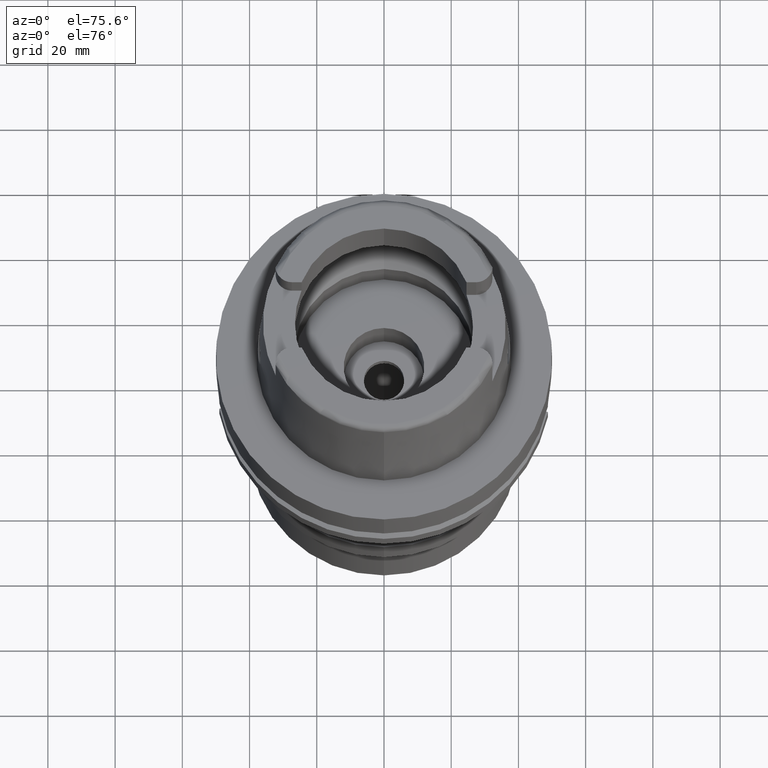
[diagram: clean part render]
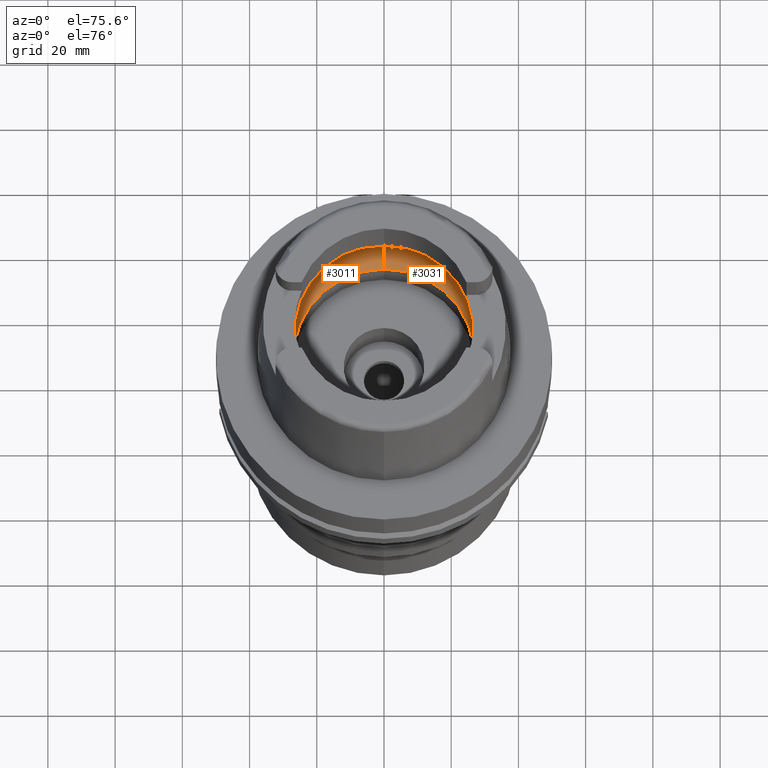
[diagram: same view with one multi-face feature highlighted, each face labeled with its STEP entity id]
A machine part, auxiliary view. The highlighted faces form ONE feature: a constant-radius fillet chain: 2 tangent blend faces with common blend radius 12 mm. The faces share edges in the B-rep.
Their STEP definitions:
[1] entity #3011 (Torus):
#498=CARTESIAN_POINT('',(-3.140918884336E1,-2.390158196044E0,9.496624327026E0));
#543=CARTESIAN_POINT('',(-3.148971910754E1,0.E0,9.E0));
#544=CARTESIAN_POINT('',(-3.148971910754E1,-2.735552426835E-1,9.E0));
#545=CARTESIAN_POINT('',(-3.148418901092E1,-8.204027768437E-1,
9.037461925815E0));
#546=CARTESIAN_POINT('',(-3.145848757005E1,-1.624950920429E0,9.204834711235E0));
#547=CARTESIAN_POINT('',(-3.142821181016E1,-2.140176434291E0,9.388055333699E0));
#548=CARTESIAN_POINT('',(-3.140918884336E1,-2.390158196044E0,9.496624327026E0));
#571=CARTESIAN_POINT('',(-3.140918884336E1,2.390158196044E0,9.496624327026E0));
#572=CARTESIAN_POINT('',(-3.142821158607E1,2.140179379143E0,9.388056612671E0));
#573=CARTESIAN_POINT('',(-3.145848727389E1,1.624958120972E0,9.204836685399E0));
#574=CARTESIAN_POINT('',(-3.148418900229E1,8.204048274011E-1,9.037461976477E0));
#575=CARTESIAN_POINT('',(-3.148971910754E1,2.735560829655E-1,9.E0));
#576=CARTESIAN_POINT('',(-3.148971910754E1,0.E0,9.E0));
#608=CARTESIAN_POINT('',(0.E0,0.E0,9.496624327026E0));
#609=DIRECTION('',(0.E0,0.E0,-1.E0));
#610=DIRECTION('',(-9.971171061384E-1,7.587803796965E-2,0.E0));
#611=AXIS2_PLACEMENT_3D('',#608,#609,#610);
#616=CARTESIAN_POINT('',(0.E0,0.E0,4.993178413035E-2));
#617=DIRECTION('',(0.E0,0.E0,1.E0));
#618=DIRECTION('',(0.E0,1.E0,0.E0));
#619=AXIS2_PLACEMENT_3D('',#616,#617,#618);
#624=CARTESIAN_POINT('',(0.E0,-1.95E1,9.496624327026E0));
#625=DIRECTION('',(-1.E0,0.E0,0.E0));
#626=DIRECTION('',(0.E0,-6.166666666667E-1,-7.872243785746E-1));
#627=AXIS2_PLACEMENT_3D('',#624,#625,#626);
#632=CARTESIAN_POINT('',(0.E0,0.E0,9.496624327026E0));
#633=DIRECTION('',(0.E0,0.E0,-1.E0));
#634=DIRECTION('',(0.E0,-1.E0,0.E0));
#635=AXIS2_PLACEMENT_3D('',#632,#633,#634);
#656=CARTESIAN_POINT('',(0.E0,1.95E1,9.496624327026E0));
#657=DIRECTION('',(1.E0,0.E0,0.E0));
#658=DIRECTION('',(0.E0,6.166666666667E-1,-7.872243785746E-1));
#659=AXIS2_PLACEMENT_3D('',#656,#657,#658);
#2360=VERTEX_POINT('',#498);
#2362=CARTESIAN_POINT('',(0.E0,-3.15E1,9.496624327026E0));
#2363=VERTEX_POINT('',#2362);
#2364=CARTESIAN_POINT('',(0.E0,3.15E1,9.496624327026E0));
#2365=VERTEX_POINT('',#2364);
#2366=CARTESIAN_POINT('',(-3.140918884336E1,2.390158196044E0,9.496624327026E0));
#2367=VERTEX_POINT('',#2366);
#2368=CARTESIAN_POINT('',(-3.148971910754E1,0.E0,9.E0));
#2369=VERTEX_POINT('',#2368);
#2374=CARTESIAN_POINT('',(0.E0,2.69E1,4.993178413035E-2));
#2375=VERTEX_POINT('',#2374);
#2376=CARTESIAN_POINT('',(0.E0,-2.69E1,4.993178413035E-2));
#2377=VERTEX_POINT('',#2376);
#2994=CARTESIAN_POINT('',(0.E0,0.E0,9.496624327026E0));
#2995=DIRECTION('',(0.E0,0.E0,1.E0));
#2996=DIRECTION('',(0.E0,1.E0,0.E0));
#2997=AXIS2_PLACEMENT_3D('',#2994,#2995,#2996);
#2998=TOROIDAL_SURFACE('',#2997,1.95E1,1.2E1);
#2999=ORIENTED_EDGE('',*,*,#2975,.F.);
#3000=ORIENTED_EDGE('',*,*,#2986,.F.);
#3001=ORIENTED_EDGE('',*,*,#2957,.T.);
#3003=ORIENTED_EDGE('',*,*,#3002,.F.);
#3005=ORIENTED_EDGE('',*,*,#3004,.T.);
#3007=ORIENTED_EDGE('',*,*,#3006,.T.);
#3008=ORIENTED_EDGE('',*,*,#2950,.T.);
#3009=EDGE_LOOP('',(#2999,#3000,#3001,#3003,#3005,#3007,#3008));
#3010=FACE_OUTER_BOUND('',#3009,.F.);
#549=B_SPLINE_CURVE_WITH_KNOTS('',3,(#543,#544,#545,#546,#547,#548),
.UNSPECIFIED.,.F.,.F.,(4,1,1,4),(0.E0,3.333333333333E-1,6.666666666667E-1,1.E0),
.UNSPECIFIED.);
#577=B_SPLINE_CURVE_WITH_KNOTS('',3,(#571,#572,#573,#574,#575,#576),
.UNSPECIFIED.,.F.,.F.,(4,1,1,4),(0.E0,3.333333333333E-1,6.666666666667E-1,1.E0),
.UNSPECIFIED.);
#612=CIRCLE('',#611,3.15E1);
#620=CIRCLE('',#619,2.69E1);
#628=CIRCLE('',#627,1.2E1);
#636=CIRCLE('',#635,3.15E1);
#660=CIRCLE('',#659,1.2E1);
#2950=EDGE_CURVE('',#2363,#2360,#636,.T.);
#2957=EDGE_CURVE('',#2367,#2365,#612,.T.);
#2975=EDGE_CURVE('',#2369,#2360,#549,.T.);
#2986=EDGE_CURVE('',#2367,#2369,#577,.T.);
#3002=EDGE_CURVE('',#2375,#2365,#660,.T.);
#3004=EDGE_CURVE('',#2375,#2377,#620,.T.);
#3006=EDGE_CURVE('',#2377,#2363,#628,.T.);
#3011=ADVANCED_FACE('',(#3010),#2998,.F.);
[2] entity #3031 (Torus):
#624=CARTESIAN_POINT('',(0.E0,-1.95E1,9.496624327026E0));
#625=DIRECTION('',(-1.E0,0.E0,0.E0));
#626=DIRECTION('',(0.E0,-6.166666666667E-1,-7.872243785746E-1));
#627=AXIS2_PLACEMENT_3D('',#624,#625,#626);
#640=CARTESIAN_POINT('',(0.E0,0.E0,9.496624327026E0));
#641=DIRECTION('',(0.E0,0.E0,-1.E0));
#642=DIRECTION('',(9.971171061384E-1,-7.587803796965E-2,0.E0));
#643=AXIS2_PLACEMENT_3D('',#640,#641,#642);
#648=CARTESIAN_POINT('',(0.E0,0.E0,4.993178413035E-2));
#649=DIRECTION('',(0.E0,0.E0,1.E0));
#650=DIRECTION('',(0.E0,-1.E0,0.E0));
#651=AXIS2_PLACEMENT_3D('',#648,#649,#650);
#656=CARTESIAN_POINT('',(0.E0,1.95E1,9.496624327026E0));
#657=DIRECTION('',(1.E0,0.E0,0.E0));
#658=DIRECTION('',(0.E0,6.166666666667E-1,-7.872243785746E-1));
#659=AXIS2_PLACEMENT_3D('',#656,#657,#658);
#664=CARTESIAN_POINT('',(0.E0,0.E0,9.496624327026E0));
#665=DIRECTION('',(0.E0,0.E0,-1.E0));
#666=DIRECTION('',(0.E0,1.E0,0.E0));
#667=AXIS2_PLACEMENT_3D('',#664,#665,#666);
#685=CARTESIAN_POINT('',(3.140918884336E1,-2.390158196044E0,9.496624327026E0));
#690=CARTESIAN_POINT('',(3.140918884336E1,-2.390158196044E0,9.496624327026E0));
#691=CARTESIAN_POINT('',(3.142821177522E1,-2.140176893475E0,9.388055533126E0));
#692=CARTESIAN_POINT('',(3.145848751607E1,-1.624952045320E0,9.204835052085E0));
#693=CARTESIAN_POINT('',(3.148418898981E1,-8.204039868064E-1,9.037462069794E0));
#694=CARTESIAN_POINT('',(3.148971910754E1,-2.735557629974E-1,9.E0));
#695=CARTESIAN_POINT('',(3.148971910754E1,0.E0,9.E0));
#734=CARTESIAN_POINT('',(3.140918884336E1,2.390158196044E0,9.496624327026E0));
#779=CARTESIAN_POINT('',(3.148971910754E1,0.E0,9.E0));
#780=CARTESIAN_POINT('',(3.148971910754E1,2.735555366566E-1,9.E0));
#781=CARTESIAN_POINT('',(3.148418902436E1,8.204035567612E-1,9.037461825732E0));
#782=CARTESIAN_POINT('',(3.145848733111E1,1.624956927203E0,9.204836324167E0));
#783=CARTESIAN_POINT('',(3.142821162315E1,2.140178891828E0,9.388056401026E0));
#784=CARTESIAN_POINT('',(3.140918884336E1,2.390158196044E0,9.496624327026E0));
#2362=CARTESIAN_POINT('',(0.E0,-3.15E1,9.496624327026E0));
#2363=VERTEX_POINT('',#2362);
#2364=CARTESIAN_POINT('',(0.E0,3.15E1,9.496624327026E0));
#2365=VERTEX_POINT('',#2364);
#2371=VERTEX_POINT('',#685);
#2372=VERTEX_POINT('',#695);
#2373=VERTEX_POINT('',#734);
#2374=CARTESIAN_POINT('',(0.E0,2.69E1,4.993178413035E-2));
#2375=VERTEX_POINT('',#2374);
#2376=CARTESIAN_POINT('',(0.E0,-2.69E1,4.993178413035E-2));
#2377=VERTEX_POINT('',#2376);
#3012=CARTESIAN_POINT('',(0.E0,0.E0,9.496624327026E0));
#3013=DIRECTION('',(0.E0,0.E0,1.E0));
#3014=DIRECTION('',(0.E0,1.E0,0.E0));
#3015=AXIS2_PLACEMENT_3D('',#3012,#3013,#3014);
#3016=TOROIDAL_SURFACE('',#3015,1.95E1,1.2E1);
#3018=ORIENTED_EDGE('',*,*,#3017,.F.);
#3020=ORIENTED_EDGE('',*,*,#3019,.T.);
#3021=ORIENTED_EDGE('',*,*,#3006,.F.);
#3023=ORIENTED_EDGE('',*,*,#3022,.T.);
#3024=ORIENTED_EDGE('',*,*,#3002,.T.);
#3026=ORIENTED_EDGE('',*,*,#3025,.T.);
#3028=ORIENTED_EDGE('',*,*,#3027,.F.);
#3029=EDGE_LOOP('',(#3018,#3020,#3021,#3023,#3024,#3026,#3028));
#3030=FACE_OUTER_BOUND('',#3029,.F.);
#628=CIRCLE('',#627,1.2E1);
#644=CIRCLE('',#643,3.15E1);
#652=CIRCLE('',#651,2.69E1);
#660=CIRCLE('',#659,1.2E1);
#668=CIRCLE('',#667,3.15E1);
#696=B_SPLINE_CURVE_WITH_KNOTS('',3,(#690,#691,#692,#693,#694,#695),
.UNSPECIFIED.,.F.,.F.,(4,1,1,4),(0.E0,3.333333333333E-1,6.666666666667E-1,1.E0),
.UNSPECIFIED.);
#785=B_SPLINE_CURVE_WITH_KNOTS('',3,(#779,#780,#781,#782,#783,#784),
.UNSPECIFIED.,.F.,.F.,(4,1,1,4),(0.E0,3.333333333333E-1,6.666666666667E-1,1.E0),
.UNSPECIFIED.);
#3002=EDGE_CURVE('',#2375,#2365,#660,.T.);
#3006=EDGE_CURVE('',#2377,#2363,#628,.T.);
#3017=EDGE_CURVE('',#2371,#2372,#696,.T.);
#3019=EDGE_CURVE('',#2371,#2363,#644,.T.);
#3022=EDGE_CURVE('',#2377,#2375,#652,.T.);
#3025=EDGE_CURVE('',#2365,#2373,#668,.T.);
#3027=EDGE_CURVE('',#2372,#2373,#785,.T.);
#3031=ADVANCED_FACE('',(#3030),#3016,.F.);